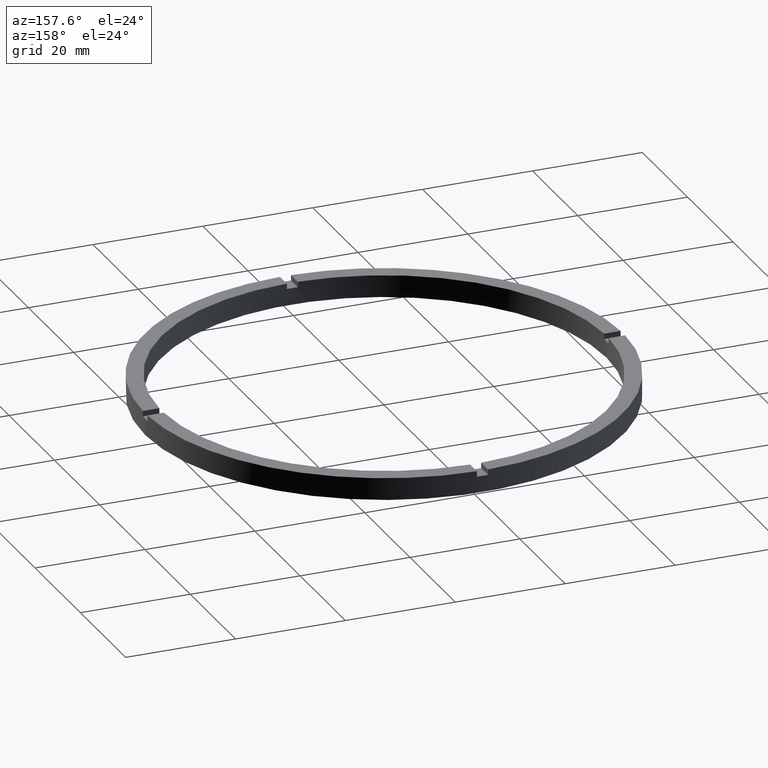
[diagram: clean part render]
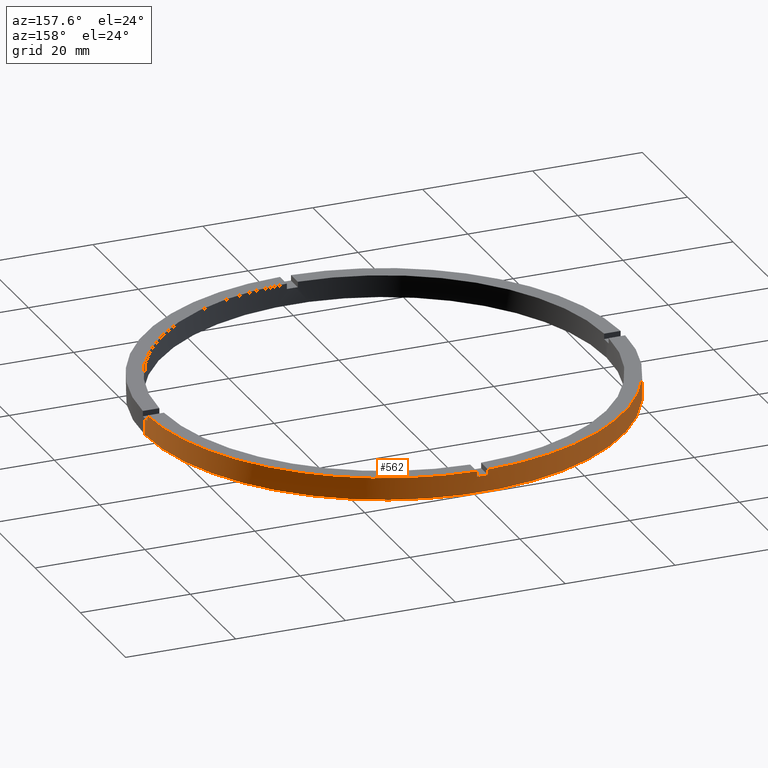
[diagram: same view with one face highlighted and labeled with its STEP entity id]
A machine part, auxiliary view. The second image highlights one B-rep face of the part: STEP entity #562.
In plain terms, the highlighted cylindrical surface (partial cylindrical patch) has radius 43.5 mm, axis along (-0, -0, -1).
Its self-contained STEP definition (entity closure, byte-faithful):
#10 = AXIS2_PLACEMENT_3D ( 'NONE', #207, #527, #290 ) ;
#35 = ORIENTED_EDGE ( 'NONE', *, *, #722, .F. ) ;
#49 = EDGE_CURVE ( 'NONE', #248, #311, #463, .T. ) ;
#51 = LINE ( 'NONE', #149, #571 ) ;
#56 = CARTESIAN_POINT ( 'NONE',  ( 0.000000000000000000, 0.000000000000000000, 3.000000000000000000 ) ) ;
#58 = ORIENTED_EDGE ( 'NONE', *, *, #676, .T. ) ;
#64 = CARTESIAN_POINT ( 'NONE',  ( -43.50000000000000000, 0.000000000000000000, 0.000000000000000000 ) ) ;
#67 = ORIENTED_EDGE ( 'NONE', *, *, #283, .F. ) ;
#71 = LINE ( 'NONE', #445, #74 ) ;
#74 = VECTOR ( 'NONE', #738, 1000.000000000000000 ) ;
#76 = LINE ( 'NONE', #160, #596 ) ;
#87 = CARTESIAN_POINT ( 'NONE',  ( 0.9999999999999740208, 43.48850422812906658, 4.000000000000000000 ) ) ;
#105 = CARTESIAN_POINT ( 'NONE',  ( 0.000000000000000000, 0.000000000000000000, 4.000000000000000000 ) ) ;
#106 = CARTESIAN_POINT ( 'NONE',  ( -1.000000000000025979, 43.48850422812906658, 4.000000000000000000 ) ) ;
#119 = EDGE_CURVE ( 'NONE', #681, #736, #51, .T. ) ;
#125 = DIRECTION ( 'NONE',  ( 1.000000000000000000, 0.000000000000000000, 0.000000000000000000 ) ) ;
#137 = AXIS2_PLACEMENT_3D ( 'NONE', #624, #705, #374 ) ;
#149 = CARTESIAN_POINT ( 'NONE',  ( 43.50000000000000000, 5.327213576290986044E-15, 4.000000000000000000 ) ) ;
#150 = CARTESIAN_POINT ( 'NONE',  ( 43.50000000000000000, 5.327213576290986044E-15, 3.000000000000000000 ) ) ;
#157 = VERTEX_POINT ( 'NONE', #411 ) ;
#160 = CARTESIAN_POINT ( 'NONE',  ( -43.48850422812906658, 0.9999999999999705791, 4.000000000000000000 ) ) ;
#163 = CARTESIAN_POINT ( 'NONE',  ( 0.000000000000000000, 0.000000000000000000, 4.000000000000000000 ) ) ;
#168 = VERTEX_POINT ( 'NONE', #665 ) ;
#178 = DIRECTION ( 'NONE',  ( -0.000000000000000000, -0.000000000000000000, -1.000000000000000000 ) ) ;
#188 = ORIENTED_EDGE ( 'NONE', *, *, #255, .T. ) ;
#201 = DIRECTION ( 'NONE',  ( 0.000000000000000000, 0.000000000000000000, 1.000000000000000000 ) ) ;
#205 = EDGE_CURVE ( 'NONE', #454, #766, #595, .T. ) ;
#207 = CARTESIAN_POINT ( 'NONE',  ( 0.000000000000000000, 0.000000000000000000, 4.000000000000000000 ) ) ;
#208 = DIRECTION ( 'NONE',  ( 1.000000000000000000, 0.000000000000000000, 0.000000000000000000 ) ) ;
#214 = CARTESIAN_POINT ( 'NONE',  ( -43.50000000000000000, 0.000000000000000000, 4.000000000000000000 ) ) ;
#248 = VERTEX_POINT ( 'NONE', #693 ) ;
#253 = ORIENTED_EDGE ( 'NONE', *, *, #49, .T. ) ;
#255 = EDGE_CURVE ( 'NONE', #454, #523, #71, .T. ) ;
#271 = EDGE_CURVE ( 'NONE', #248, #523, #590, .T. ) ;
#282 = CARTESIAN_POINT ( 'NONE',  ( 0.9999999999999740208, 43.48850422812906658, 3.000000000000000000 ) ) ;
#283 = EDGE_CURVE ( 'NONE', #682, #494, #328, .T. ) ;
#284 = DIRECTION ( 'NONE',  ( -0.000000000000000000, -0.000000000000000000, -1.000000000000000000 ) ) ;
#285 = CYLINDRICAL_SURFACE ( 'NONE', #10, 43.50000000000000000 ) ;
#290 = DIRECTION ( 'NONE',  ( -1.000000000000000000, 0.000000000000000000, 0.000000000000000000 ) ) ;
#299 = VECTOR ( 'NONE', #362, 1000.000000000000000 ) ;
#311 = VERTEX_POINT ( 'NONE', #628 ) ;
#323 = CIRCLE ( 'NONE', #670, 43.50000000000000000 ) ;
#325 = AXIS2_PLACEMENT_3D ( 'NONE', #437, #490, #208 ) ;
#328 = CIRCLE ( 'NONE', #765, 43.50000000000000000 ) ;
#330 = DIRECTION ( 'NONE',  ( 0.000000000000000000, 0.000000000000000000, 1.000000000000000000 ) ) ;
#348 = EDGE_CURVE ( 'NONE', #157, #501, #716, .T. ) ;
#349 = CARTESIAN_POINT ( 'NONE',  ( 0.000000000000000000, 0.000000000000000000, 3.000000000000000000 ) ) ;
#360 = DIRECTION ( 'NONE',  ( 1.000000000000000000, 0.000000000000000000, 0.000000000000000000 ) ) ;
#362 = DIRECTION ( 'NONE',  ( -0.000000000000000000, -0.000000000000000000, -1.000000000000000000 ) ) ;
#367 = DIRECTION ( 'NONE',  ( 0.000000000000000000, 0.000000000000000000, 1.000000000000000000 ) ) ;
#374 = DIRECTION ( 'NONE',  ( 1.000000000000000000, 0.000000000000000000, 0.000000000000000000 ) ) ;
#386 = CIRCLE ( 'NONE', #667, 43.50000000000000000 ) ;
#398 = EDGE_CURVE ( 'NONE', #736, #501, #461, .T. ) ;
#399 = CARTESIAN_POINT ( 'NONE',  ( -1.000000000000025979, 43.48850422812906658, 3.000000000000000000 ) ) ;
#411 = CARTESIAN_POINT ( 'NONE',  ( -43.50000000000000000, 0.000000000000000000, 3.000000000000000000 ) ) ;
#424 = ORIENTED_EDGE ( 'NONE', *, *, #119, .T. ) ;
#437 = CARTESIAN_POINT ( 'NONE',  ( 0.000000000000000000, 0.000000000000000000, 3.000000000000000000 ) ) ;
#444 = CARTESIAN_POINT ( 'NONE',  ( -43.48850422812906658, 0.9999999999999705791, 4.000000000000000000 ) ) ;
#445 = CARTESIAN_POINT ( 'NONE',  ( 0.9999999999999740208, 43.48850422812906658, 4.000000000000000000 ) ) ;
#454 = VERTEX_POINT ( 'NONE', #282 ) ;
#455 = EDGE_CURVE ( 'NONE', #682, #766, #557, .T. ) ;
#456 = ORIENTED_EDGE ( 'NONE', *, *, #271, .F. ) ;
#457 = VECTOR ( 'NONE', #284, 1000.000000000000000 ) ;
#461 = CIRCLE ( 'NONE', #137, 43.50000000000000000 ) ;
#463 = LINE ( 'NONE', #642, #727 ) ;
#471 = DIRECTION ( 'NONE',  ( 1.000000000000000000, 0.000000000000000000, 0.000000000000000000 ) ) ;
#473 = DIRECTION ( 'NONE',  ( 0.000000000000000000, 0.000000000000000000, 1.000000000000000000 ) ) ;
#490 = DIRECTION ( 'NONE',  ( 0.000000000000000000, -0.000000000000000000, 1.000000000000000000 ) ) ;
#494 = VERTEX_POINT ( 'NONE', #444 ) ;
#501 = VERTEX_POINT ( 'NONE', #64 ) ;
#523 = VERTEX_POINT ( 'NONE', #87 ) ;
#527 = DIRECTION ( 'NONE',  ( -0.000000000000000000, -0.000000000000000000, -1.000000000000000000 ) ) ;
#530 = DIRECTION ( 'NONE',  ( -0.000000000000000000, -0.000000000000000000, -1.000000000000000000 ) ) ;
#534 = ORIENTED_EDGE ( 'NONE', *, *, #398, .T. ) ;
#557 = LINE ( 'NONE', #687, #299 ) ;
#560 = AXIS2_PLACEMENT_3D ( 'NONE', #105, #473, #471 ) ;
#561 = ORIENTED_EDGE ( 'NONE', *, *, #348, .F. ) ;
#562 = ADVANCED_FACE ( 'NONE', ( #566 ), #285, .T. ) ;
#566 = FACE_OUTER_BOUND ( 'NONE', #710, .T. ) ;
#571 = VECTOR ( 'NONE', #530, 1000.000000000000000 ) ;
#590 = CIRCLE ( 'NONE', #560, 43.50000000000000000 ) ;
#595 = CIRCLE ( 'NONE', #325, 43.50000000000000000 ) ;
#596 = VECTOR ( 'NONE', #367, 1000.000000000000000 ) ;
#601 = DIRECTION ( 'NONE',  ( 0.000000000000000000, 0.000000000000000000, 1.000000000000000000 ) ) ;
#619 = EDGE_CURVE ( 'NONE', #168, #157, #386, .T. ) ;
#624 = CARTESIAN_POINT ( 'NONE',  ( 0.000000000000000000, 0.000000000000000000, 0.000000000000000000 ) ) ;
#628 = CARTESIAN_POINT ( 'NONE',  ( 43.48850422812906658, 0.9999999999998436806, 3.000000000000000000 ) ) ;
#642 = CARTESIAN_POINT ( 'NONE',  ( 43.48850422812906658, 0.9999999999998436806, 4.000000000000000000 ) ) ;
#665 = CARTESIAN_POINT ( 'NONE',  ( -43.48850422812906658, 0.9999999999999705791, 3.000000000000000000 ) ) ;
#667 = AXIS2_PLACEMENT_3D ( 'NONE', #349, #601, #686 ) ;
#670 = AXIS2_PLACEMENT_3D ( 'NONE', #56, #201, #360 ) ;
#676 = EDGE_CURVE ( 'NONE', #168, #494, #76, .T. ) ;
#681 = VERTEX_POINT ( 'NONE', #150 ) ;
#682 = VERTEX_POINT ( 'NONE', #106 ) ;
#686 = DIRECTION ( 'NONE',  ( 1.000000000000000000, 0.000000000000000000, 0.000000000000000000 ) ) ;
#687 = CARTESIAN_POINT ( 'NONE',  ( -1.000000000000025979, 43.48850422812906658, 4.000000000000000000 ) ) ;
#691 = ORIENTED_EDGE ( 'NONE', *, *, #619, .F. ) ;
#693 = CARTESIAN_POINT ( 'NONE',  ( 43.48850422812906658, 0.9999999999998436806, 4.000000000000000000 ) ) ;
#705 = DIRECTION ( 'NONE',  ( 0.000000000000000000, 0.000000000000000000, 1.000000000000000000 ) ) ;
#708 = ORIENTED_EDGE ( 'NONE', *, *, #205, .F. ) ;
#710 = EDGE_LOOP ( 'NONE', ( #35, #424, #534, #561, #691, #58, #67, #739, #708, #188, #456, #253 ) ) ;
#716 = LINE ( 'NONE', #214, #457 ) ;
#722 = EDGE_CURVE ( 'NONE', #681, #311, #323, .T. ) ;
#727 = VECTOR ( 'NONE', #178, 1000.000000000000000 ) ;
#736 = VERTEX_POINT ( 'NONE', #751 ) ;
#738 = DIRECTION ( 'NONE',  ( 0.000000000000000000, 0.000000000000000000, 1.000000000000000000 ) ) ;
#739 = ORIENTED_EDGE ( 'NONE', *, *, #455, .T. ) ;
#751 = CARTESIAN_POINT ( 'NONE',  ( 43.50000000000000000, 5.327213576290986044E-15, 0.000000000000000000 ) ) ;
#765 = AXIS2_PLACEMENT_3D ( 'NONE', #163, #330, #125 ) ;
#766 = VERTEX_POINT ( 'NONE', #399 ) ;